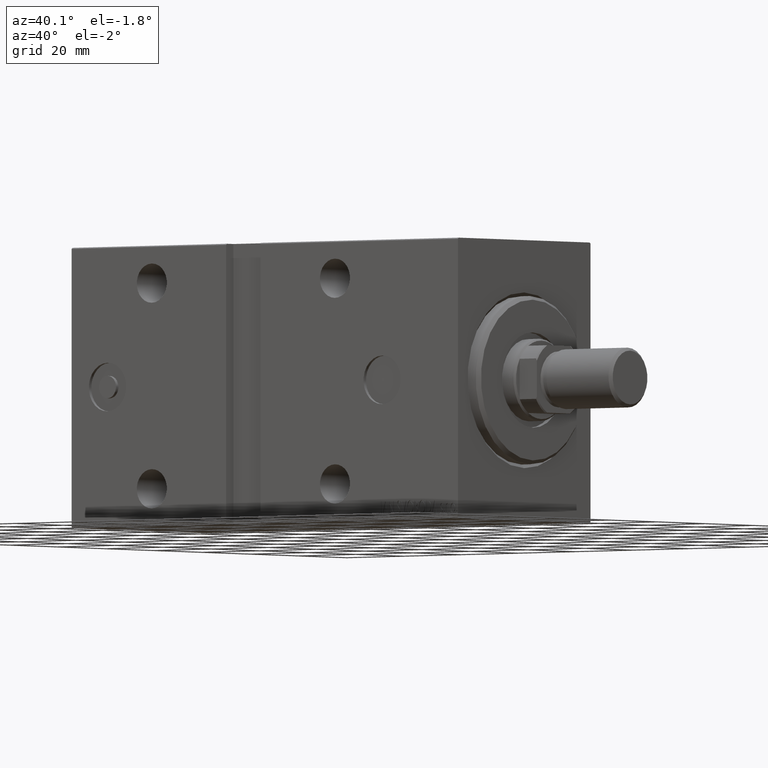
[diagram: clean part render]
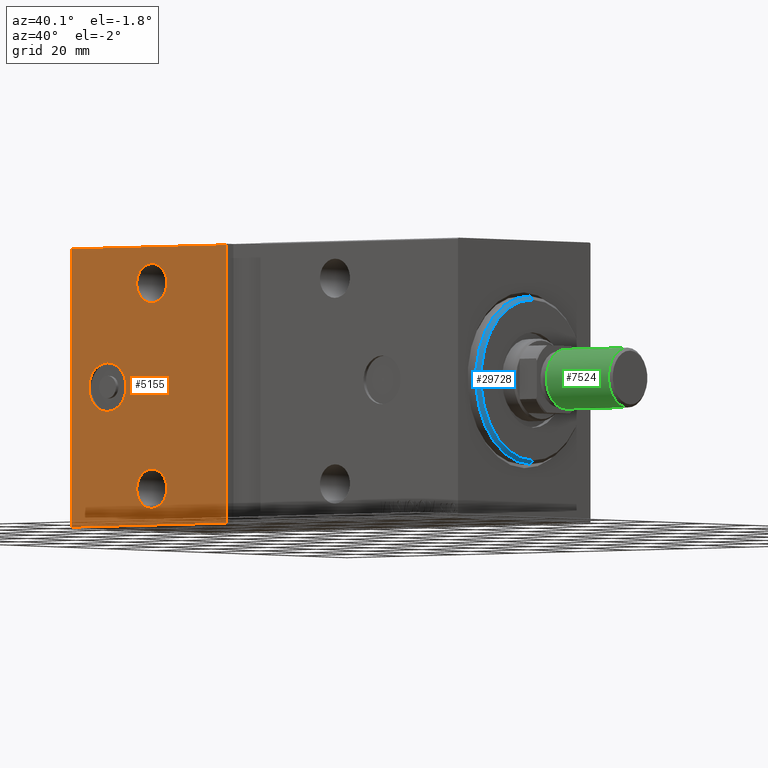
[diagram: same view with three faces highlighted in distinct colors, each labeled with its STEP entity id]
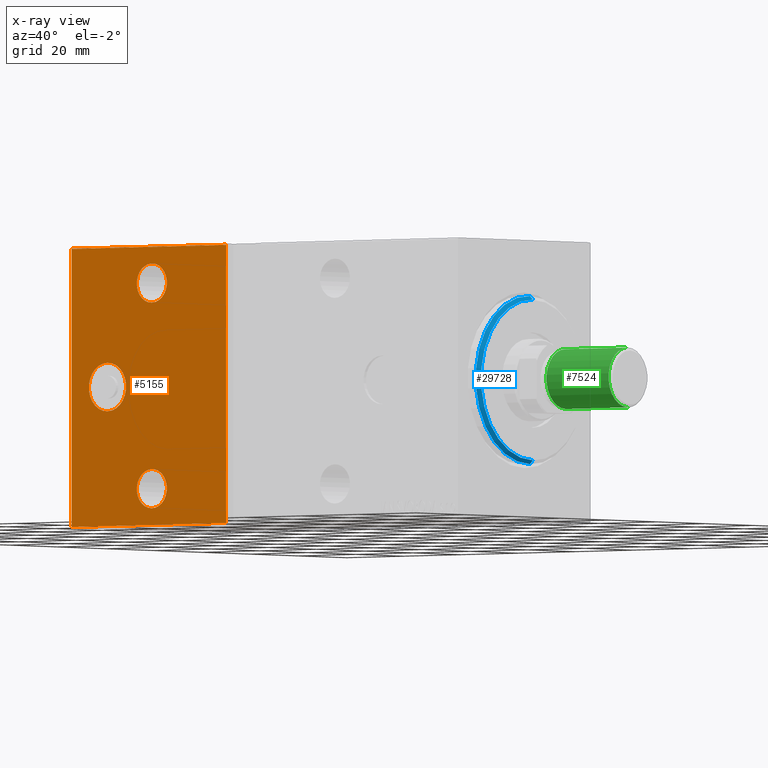
[diagram: x-ray of the same camera — body ghosted, the three highlighted faces saturated]
A machine part, auxiliary view with three faces highlighted in distinct colors.
The next image is the same camera in x-ray (body ghosted, the three faces saturated) — at least one of them is partly hidden behind the body in this view.
Their STEP definitions:

[orange] entity #5155 — the highlighted planar face has unit normal (-0, 1, -0).
#906 = EDGE_CURVE ( 'NONE', #7694, #34104, #38240, .T. ) ;
#1043 = CARTESIAN_POINT ( 'NONE',  ( 135.0000000000000000, 27.50000000000000355, -37.50000000000000711 ) ) ;
#1158 = EDGE_CURVE ( 'NONE', #21113, #3558, #5487, .T. ) ;
#1544 = ORIENTED_EDGE ( 'NONE', *, *, #1561, .F. ) ;
#1561 = EDGE_CURVE ( 'NONE', #8034, #31660, #38566, .T. ) ;
#1608 = DIRECTION ( 'NONE',  ( 0.000000000000000000, -1.000000000000000000, -9.251858538542970348E-17 ) ) ;
#1773 = ORIENTED_EDGE ( 'NONE', *, *, #35653, .F. ) ;
#1791 = DIRECTION ( 'NONE',  ( 0.000000000000000000, 0.000000000000000000, 1.000000000000000000 ) ) ;
#1877 = FACE_BOUND ( 'NONE', #31082, .T. ) ;
#2347 = EDGE_CURVE ( 'NONE', #4429, #20480, #3322, .T. ) ;
#2438 = EDGE_LOOP ( 'NONE', ( #14180, #25598 ) ) ;
#3322 = CIRCLE ( 'NONE', #27099, 6.500000000000015099 ) ;
#3558 = VERTEX_POINT ( 'NONE', #6523 ) ;
#4079 = CARTESIAN_POINT ( 'NONE',  ( 107.0000000000000142, 27.49999999999999645, 27.49999999999999289 ) ) ;
#4429 = VERTEX_POINT ( 'NONE', #15147 ) ;
#4435 = DIRECTION ( 'NONE',  ( 1.000000000000000000, 0.000000000000000000, 0.000000000000000000 ) ) ;
#4725 = FACE_OUTER_BOUND ( 'NONE', #10265, .T. ) ;
#5126 = DIRECTION ( 'NONE',  ( 0.000000000000000000, -1.000000000000000000, -9.251858538542970348E-17 ) ) ;
#5155 = ADVANCED_FACE ( 'NONE', ( #8016, #28561, #1877, #4725 ), #18493, .F. ) ;
#5487 = CIRCLE ( 'NONE', #35537, 5.250000000000004441 ) ;
#6512 = VECTOR ( 'NONE', #4435, 1000.000000000000000 ) ;
#6523 = CARTESIAN_POINT ( 'NONE',  ( 107.0000000000000142, 27.49999999999999645, 32.74999999999999289 ) ) ;
#6869 = CIRCLE ( 'NONE', #8967, 5.250000000000000888 ) ;
#7117 = LINE ( 'NONE', #10388, #25180 ) ;
#7489 = AXIS2_PLACEMENT_3D ( 'NONE', #4079, #27078, #7590 ) ;
#7590 = DIRECTION ( 'NONE',  ( 0.000000000000000000, 0.000000000000000000, -1.000000000000000000 ) ) ;
#7671 = DIRECTION ( 'NONE',  ( 0.000000000000000000, 0.000000000000000000, -1.000000000000000000 ) ) ;
#7694 = VERTEX_POINT ( 'NONE', #34087 ) ;
#8001 = CARTESIAN_POINT ( 'NONE',  ( 107.0000000000000142, 27.49999999999999645, 27.49999999999999289 ) ) ;
#8016 = FACE_BOUND ( 'NONE', #24638, .T. ) ;
#8034 = VERTEX_POINT ( 'NONE', #9555 ) ;
#8354 = CARTESIAN_POINT ( 'NONE',  ( 122.5000000000000284, 27.50000000000000000, 2.544261098099316809E-15 ) ) ;
#8886 = CARTESIAN_POINT ( 'NONE',  ( 107.0000000000000142, 27.50000000000000355, -22.25000000000000355 ) ) ;
#8967 = AXIS2_PLACEMENT_3D ( 'NONE', #20800, #17511, #7671 ) ;
#9130 = DIRECTION ( 'NONE',  ( 0.000000000000000000, -9.251858538542970348E-17, 1.000000000000000000 ) ) ;
#9213 = CARTESIAN_POINT ( 'NONE',  ( 135.0000000000000000, 27.49999999999999645, 37.20000000000002416 ) ) ;
#9555 = CARTESIAN_POINT ( 'NONE',  ( 81.00000000000000000, 27.49999999999999645, 37.20000000000003126 ) ) ;
#10265 = EDGE_LOOP ( 'NONE', ( #30317, #39592, #1544, #35740 ) ) ;
#10388 = CARTESIAN_POINT ( 'NONE',  ( 135.0000000000000000, 27.50000000000000355, -37.19999999999999574 ) ) ;
#11244 = AXIS2_PLACEMENT_3D ( 'NONE', #24656, #37996, #34915 ) ;
#14180 = ORIENTED_EDGE ( 'NONE', *, *, #16034, .T. ) ;
#15147 = CARTESIAN_POINT ( 'NONE',  ( 122.5000000000000284, 27.50000000000000000, -6.500000000000012434 ) ) ;
#15864 = ORIENTED_EDGE ( 'NONE', *, *, #1158, .T. ) ;
#16034 = EDGE_CURVE ( 'NONE', #43035, #19156, #38200, .T. ) ;
#17239 = ORIENTED_EDGE ( 'NONE', *, *, #2347, .F. ) ;
#17511 = DIRECTION ( 'NONE',  ( 0.000000000000000000, -1.000000000000000000, -9.251858538542970348E-17 ) ) ;
#17588 = DIRECTION ( 'NONE',  ( 0.000000000000000000, 0.000000000000000000, -1.000000000000000000 ) ) ;
#18493 = PLANE ( 'NONE',  #23290 ) ;
#18761 = CARTESIAN_POINT ( 'NONE',  ( 135.0000000000000000, 27.50000000000000355, -37.50000000000000711 ) ) ;
#19156 = VERTEX_POINT ( 'NONE', #35761 ) ;
#20206 = EDGE_CURVE ( 'NONE', #3558, #21113, #34732, .T. ) ;
#20480 = VERTEX_POINT ( 'NONE', #36164 ) ;
#20800 = CARTESIAN_POINT ( 'NONE',  ( 107.0000000000000142, 27.50000000000000355, -27.50000000000000711 ) ) ;
#21077 = LINE ( 'NONE', #34398, #6512 ) ;
#21113 = VERTEX_POINT ( 'NONE', #33497 ) ;
#21281 = DIRECTION ( 'NONE',  ( 2.465190328815661892E-32, 1.000000000000000000, 1.217002752883389755E-16 ) ) ;
#21354 = DIRECTION ( 'NONE',  ( 0.000000000000000000, 0.000000000000000000, -1.000000000000000000 ) ) ;
#22881 = VECTOR ( 'NONE', #38143, 1000.000000000000000 ) ;
#23290 = AXIS2_PLACEMENT_3D ( 'NONE', #1043, #41907, #31016 ) ;
#24246 = ORIENTED_EDGE ( 'NONE', *, *, #20206, .T. ) ;
#24514 = EDGE_CURVE ( 'NONE', #19156, #43035, #6869, .T. ) ;
#24638 = EDGE_LOOP ( 'NONE', ( #1773, #17239 ) ) ;
#24656 = CARTESIAN_POINT ( 'NONE',  ( 122.5000000000000284, 27.50000000000000000, 2.544261098099316809E-15 ) ) ;
#24947 = AXIS2_PLACEMENT_3D ( 'NONE', #37927, #1608, #17588 ) ;
#25180 = VECTOR ( 'NONE', #37098, 1000.000000000000000 ) ;
#25598 = ORIENTED_EDGE ( 'NONE', *, *, #24514, .T. ) ;
#27078 = DIRECTION ( 'NONE',  ( 0.000000000000000000, -1.000000000000000000, -9.251858538542970348E-17 ) ) ;
#27099 = AXIS2_PLACEMENT_3D ( 'NONE', #8354, #21281, #1791 ) ;
#28501 = CARTESIAN_POINT ( 'NONE',  ( 81.00000000000001421, 27.50000000000000355, -37.50000000000009237 ) ) ;
#28561 = FACE_BOUND ( 'NONE', #2438, .T. ) ;
#29674 = EDGE_CURVE ( 'NONE', #7694, #31660, #7117, .T. ) ;
#30317 = ORIENTED_EDGE ( 'NONE', *, *, #906, .F. ) ;
#31016 = DIRECTION ( 'NONE',  ( 0.000000000000000000, 9.251858538542970348E-17, -1.000000000000000000 ) ) ;
#31082 = EDGE_LOOP ( 'NONE', ( #24246, #15864 ) ) ;
#31660 = VERTEX_POINT ( 'NONE', #33261 ) ;
#33261 = CARTESIAN_POINT ( 'NONE',  ( 81.00000000000001421, 27.50000000000000355, -37.19999999999999574 ) ) ;
#33497 = CARTESIAN_POINT ( 'NONE',  ( 107.0000000000000142, 27.49999999999999645, 22.24999999999998934 ) ) ;
#33583 = CIRCLE ( 'NONE', #11244, 6.500000000000015099 ) ;
#34087 = CARTESIAN_POINT ( 'NONE',  ( 135.0000000000000000, 27.50000000000000355, -37.19999999999999574 ) ) ;
#34104 = VERTEX_POINT ( 'NONE', #9213 ) ;
#34398 = CARTESIAN_POINT ( 'NONE',  ( 135.0000000000000000, 27.49999999999999645, 37.20000000000002416 ) ) ;
#34732 = CIRCLE ( 'NONE', #7489, 5.250000000000004441 ) ;
#34915 = DIRECTION ( 'NONE',  ( 0.000000000000000000, 0.000000000000000000, 1.000000000000000000 ) ) ;
#35537 = AXIS2_PLACEMENT_3D ( 'NONE', #8001, #5126, #21354 ) ;
#35653 = EDGE_CURVE ( 'NONE', #20480, #4429, #33583, .T. ) ;
#35740 = ORIENTED_EDGE ( 'NONE', *, *, #39583, .T. ) ;
#35761 = CARTESIAN_POINT ( 'NONE',  ( 107.0000000000000142, 27.50000000000000355, -32.75000000000000711 ) ) ;
#36164 = CARTESIAN_POINT ( 'NONE',  ( 122.5000000000000284, 27.50000000000000000, 6.500000000000017764 ) ) ;
#37098 = DIRECTION ( 'NONE',  ( -1.000000000000000000, 0.000000000000000000, 0.000000000000000000 ) ) ;
#37927 = CARTESIAN_POINT ( 'NONE',  ( 107.0000000000000142, 27.50000000000000355, -27.50000000000000711 ) ) ;
#37996 = DIRECTION ( 'NONE',  ( 2.465190328815661892E-32, 1.000000000000000000, 1.217002752883389755E-16 ) ) ;
#38143 = DIRECTION ( 'NONE',  ( 1.850371707708591851E-16, 9.251858538542959255E-17, -1.000000000000000000 ) ) ;
#38200 = CIRCLE ( 'NONE', #24947, 5.250000000000000888 ) ;
#38240 = LINE ( 'NONE', #18761, #41727 ) ;
#38566 = LINE ( 'NONE', #28501, #22881 ) ;
#39583 = EDGE_CURVE ( 'NONE', #8034, #34104, #21077, .T. ) ;
#39592 = ORIENTED_EDGE ( 'NONE', *, *, #29674, .T. ) ;
#41727 = VECTOR ( 'NONE', #9130, 1000.000000000000000 ) ;
#41907 = DIRECTION ( 'NONE',  ( 0.000000000000000000, -1.000000000000000000, -9.251858538542970348E-17 ) ) ;
#43035 = VERTEX_POINT ( 'NONE', #8886 ) ;

[blue] entity #29728 — the highlighted conical surface has half-angle 45 deg.
#3912 = CIRCLE ( 'NONE', #17180, 22.50000000000000355 ) ;
#4577 = VERTEX_POINT ( 'NONE', #42632 ) ;
#5313 = ORIENTED_EDGE ( 'NONE', *, *, #7600, .F. ) ;
#6320 = DIRECTION ( 'NONE',  ( 1.000000000000000000, -0.000000000000000000, 0.000000000000000000 ) ) ;
#6584 = LINE ( 'NONE', #16659, #31504 ) ;
#6768 = DIRECTION ( 'NONE',  ( -0.7071067811865439090, 0.000000000000000000, 0.7071067811865512365 ) ) ;
#6961 = CARTESIAN_POINT ( 'NONE',  ( 2.000000000000006217, 2.755455298081545172E-15, -22.50000000000000355 ) ) ;
#7600 = EDGE_CURVE ( 'NONE', #4577, #10263, #21267, .T. ) ;
#8402 = EDGE_LOOP ( 'NONE', ( #34941, #5313, #8532, #10441 ) ) ;
#8532 = ORIENTED_EDGE ( 'NONE', *, *, #38993, .T. ) ;
#8613 = DIRECTION ( 'NONE',  ( 0.000000000000000000, 0.000000000000000000, 1.000000000000000000 ) ) ;
#10263 = VERTEX_POINT ( 'NONE', #33053 ) ;
#10269 = LINE ( 'NONE', #23410, #19776 ) ;
#10441 = ORIENTED_EDGE ( 'NONE', *, *, #18258, .F. ) ;
#15340 = VERTEX_POINT ( 'NONE', #6961 ) ;
#16659 = CARTESIAN_POINT ( 'NONE',  ( 3.000000000000000000, 2.632990618166809235E-15, -21.50000000000000000 ) ) ;
#17003 = VERTEX_POINT ( 'NONE', #28716 ) ;
#17180 = AXIS2_PLACEMENT_3D ( 'NONE', #23548, #33589, #26183 ) ;
#18258 = EDGE_CURVE ( 'NONE', #15340, #17003, #3912, .T. ) ;
#19776 = VECTOR ( 'NONE', #6768, 1000.000000000000000 ) ;
#21267 = CIRCLE ( 'NONE', #32425, 21.50000000000000000 ) ;
#22251 = DIRECTION ( 'NONE',  ( -0.7071067811865439090, 8.659560562354978464E-17, -0.7071067811865512365 ) ) ;
#23410 = CARTESIAN_POINT ( 'NONE',  ( 3.000000000000000000, 0.000000000000000000, 21.50000000000000000 ) ) ;
#23548 = CARTESIAN_POINT ( 'NONE',  ( 2.000000000000006217, 0.000000000000000000, 0.000000000000000000 ) ) ;
#24836 = FACE_OUTER_BOUND ( 'NONE', #8402, .T. ) ;
#26183 = DIRECTION ( 'NONE',  ( 0.000000000000000000, 0.000000000000000000, -1.000000000000000000 ) ) ;
#28716 = CARTESIAN_POINT ( 'NONE',  ( 2.000000000000006217, 0.000000000000000000, 22.50000000000000355 ) ) ;
#29728 = ADVANCED_FACE ( 'NONE', ( #24836 ), #31464, .T. ) ;
#31081 = EDGE_CURVE ( 'NONE', #10263, #15340, #6584, .T. ) ;
#31464 = CONICAL_SURFACE ( 'NONE', #37053, 21.50000000000000000, 0.7853981633974533860 ) ;
#31504 = VECTOR ( 'NONE', #22251, 1000.000000000000000 ) ;
#32425 = AXIS2_PLACEMENT_3D ( 'NONE', #36312, #6320, #42651 ) ;
#33053 = CARTESIAN_POINT ( 'NONE',  ( 3.000000000000000000, 2.694222958124177204E-15, -21.50000000000000000 ) ) ;
#33589 = DIRECTION ( 'NONE',  ( -1.000000000000000000, 0.000000000000000000, 0.000000000000000000 ) ) ;
#34442 = DIRECTION ( 'NONE',  ( -1.000000000000000000, 0.000000000000000000, 0.000000000000000000 ) ) ;
#34876 = CARTESIAN_POINT ( 'NONE',  ( 3.000000000000000000, 0.000000000000000000, 0.000000000000000000 ) ) ;
#34941 = ORIENTED_EDGE ( 'NONE', *, *, #31081, .F. ) ;
#36312 = CARTESIAN_POINT ( 'NONE',  ( 3.000000000000000000, 0.000000000000000000, 0.000000000000000000 ) ) ;
#37053 = AXIS2_PLACEMENT_3D ( 'NONE', #34876, #34442, #8613 ) ;
#38993 = EDGE_CURVE ( 'NONE', #4577, #17003, #10269, .T. ) ;
#42632 = CARTESIAN_POINT ( 'NONE',  ( 3.000000000000000000, 0.000000000000000000, 21.50000000000000000 ) ) ;
#42651 = DIRECTION ( 'NONE',  ( 0.000000000000000000, 0.000000000000000000, -1.000000000000000000 ) ) ;

[green] entity #7524 — the highlighted cylindrical surface (edge-blend (fillet) strip) has radius 8 mm, axis along (1, -0, -0).
#1290 = VERTEX_POINT ( 'NONE', #9504 ) ;
#1548 = CYLINDRICAL_SURFACE ( 'NONE', #35900, 8.000000000000000000 ) ;
#2080 = VERTEX_POINT ( 'NONE', #4263 ) ;
#3501 = EDGE_CURVE ( 'NONE', #42031, #5614, #40241, .T. ) ;
#4155 = VECTOR ( 'NONE', #20106, 1000.000000000000000 ) ;
#4263 = CARTESIAN_POINT ( 'NONE',  ( 8.000000000000000000, 9.797174393178823685E-16, 22.50000000000000000 ) ) ;
#5600 = CIRCLE ( 'NONE', #32170, 8.000000000000000000 ) ;
#5614 = VERTEX_POINT ( 'NONE', #6997 ) ;
#6600 = CIRCLE ( 'NONE', #17788, 8.000000000000000000 ) ;
#6750 = CARTESIAN_POINT ( 'NONE',  ( 0.000000000000000000, 0.000000000000000000, 22.50000000000000000 ) ) ;
#6840 = VECTOR ( 'NONE', #37416, 1000.000000000000000 ) ;
#6997 = CARTESIAN_POINT ( 'NONE',  ( -8.000000000000000000, 0.000000000000000000, 0.8000000000000160316 ) ) ;
#7524 = ADVANCED_FACE ( 'NONE', ( #18168 ), #1548, .T. ) ;
#9297 = EDGE_CURVE ( 'NONE', #42031, #2080, #6600, .T. ) ;
#9504 = CARTESIAN_POINT ( 'NONE',  ( 8.000000000000000000, 9.797174393178823685E-16, 0.8000000000000160316 ) ) ;
#12058 = DIRECTION ( 'NONE',  ( 1.000000000000000000, 0.000000000000000000, 0.000000000000000000 ) ) ;
#14314 = DIRECTION ( 'NONE',  ( 1.000000000000000000, 0.000000000000000000, 0.000000000000000000 ) ) ;
#17788 = AXIS2_PLACEMENT_3D ( 'NONE', #40585, #20443, #14314 ) ;
#18168 = FACE_OUTER_BOUND ( 'NONE', #20900, .T. ) ;
#19063 = DIRECTION ( 'NONE',  ( -0.000000000000000000, -0.000000000000000000, 1.000000000000000000 ) ) ;
#19765 = ORIENTED_EDGE ( 'NONE', *, *, #34126, .T. ) ;
#20106 = DIRECTION ( 'NONE',  ( -0.000000000000000000, -0.000000000000000000, -1.000000000000000000 ) ) ;
#20443 = DIRECTION ( 'NONE',  ( 0.000000000000000000, 0.000000000000000000, 1.000000000000000000 ) ) ;
#20900 = EDGE_LOOP ( 'NONE', ( #42696, #27855, #39525, #19765 ) ) ;
#23029 = EDGE_CURVE ( 'NONE', #2080, #1290, #27786, .T. ) ;
#23189 = DIRECTION ( 'NONE',  ( -1.000000000000000000, 0.000000000000000000, 0.000000000000000000 ) ) ;
#23387 = CARTESIAN_POINT ( 'NONE',  ( -8.000000000000000000, 0.000000000000000000, 22.50000000000000000 ) ) ;
#26673 = DIRECTION ( 'NONE',  ( -0.000000000000000000, -0.000000000000000000, -1.000000000000000000 ) ) ;
#27786 = LINE ( 'NONE', #34328, #6840 ) ;
#27855 = ORIENTED_EDGE ( 'NONE', *, *, #9297, .F. ) ;
#32170 = AXIS2_PLACEMENT_3D ( 'NONE', #42691, #19063, #12058 ) ;
#34126 = EDGE_CURVE ( 'NONE', #5614, #1290, #5600, .T. ) ;
#34328 = CARTESIAN_POINT ( 'NONE',  ( 8.000000000000000000, 9.797174393178823685E-16, 22.50000000000000000 ) ) ;
#35900 = AXIS2_PLACEMENT_3D ( 'NONE', #6750, #26673, #23189 ) ;
#37416 = DIRECTION ( 'NONE',  ( -0.000000000000000000, -0.000000000000000000, -1.000000000000000000 ) ) ;
#37571 = CARTESIAN_POINT ( 'NONE',  ( -8.000000000000000000, 0.000000000000000000, 22.50000000000000000 ) ) ;
#39525 = ORIENTED_EDGE ( 'NONE', *, *, #3501, .T. ) ;
#40241 = LINE ( 'NONE', #23387, #4155 ) ;
#40585 = CARTESIAN_POINT ( 'NONE',  ( 0.000000000000000000, 0.000000000000000000, 22.50000000000000000 ) ) ;
#42031 = VERTEX_POINT ( 'NONE', #37571 ) ;
#42691 = CARTESIAN_POINT ( 'NONE',  ( 0.000000000000000000, 0.000000000000000000, 0.8000000000000160316 ) ) ;
#42696 = ORIENTED_EDGE ( 'NONE', *, *, #23029, .F. ) ;